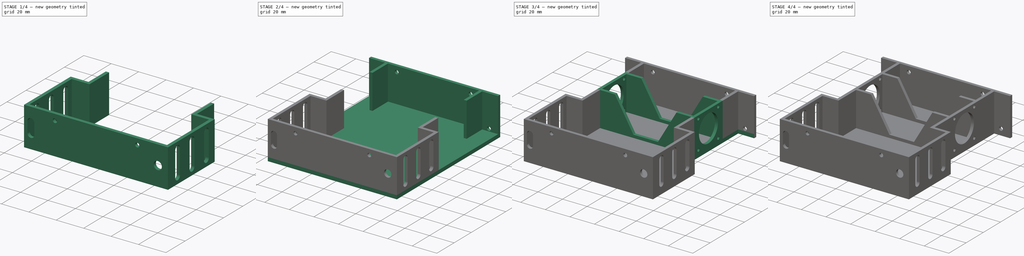
[diagram: build sequence overview — one tinted view per stage of 4, left to right]
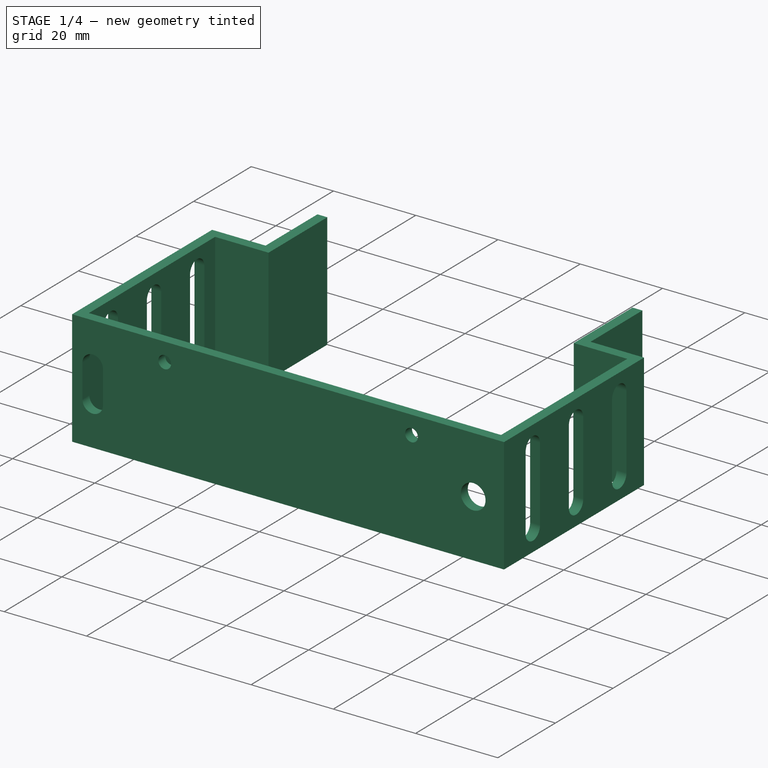
[diagram: stage 1 of 4 — iso view after this stage's code; geometry added in this stage tinted green]
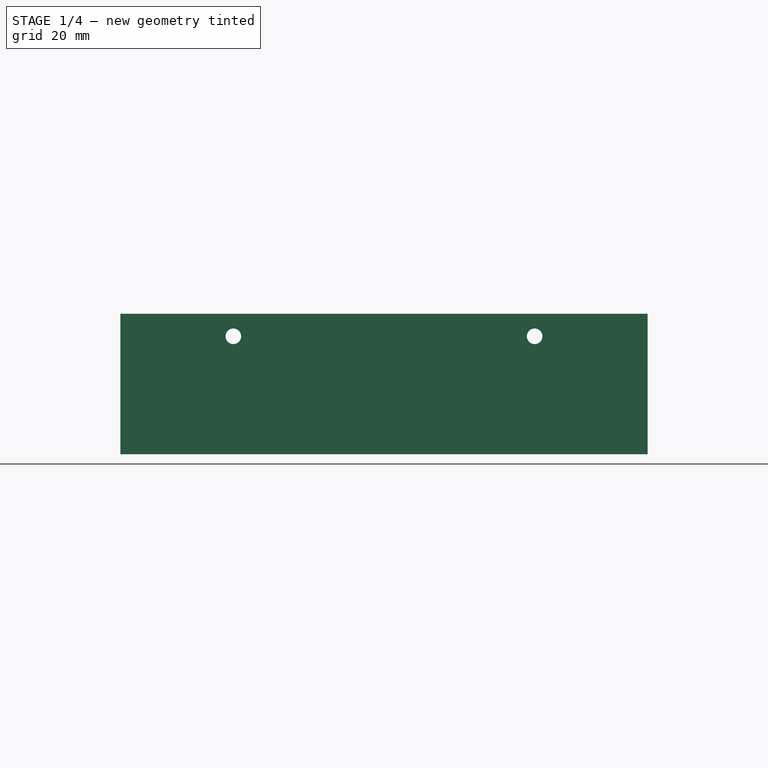
[diagram: stage 1 of 4 — front view after this stage's code; geometry added in this stage tinted green]
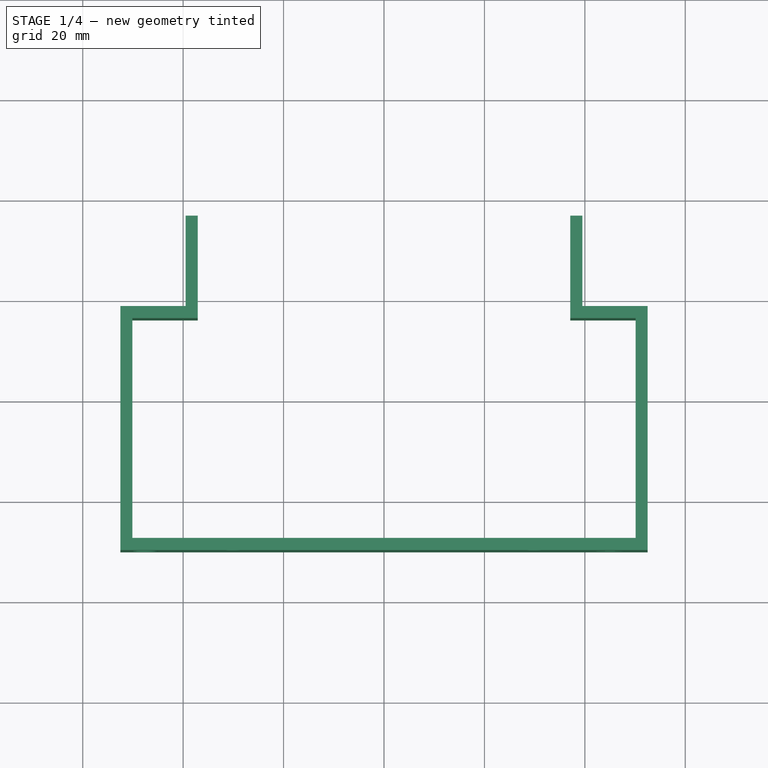
[diagram: stage 1 of 4 — top view after this stage's code; geometry added in this stage tinted green]
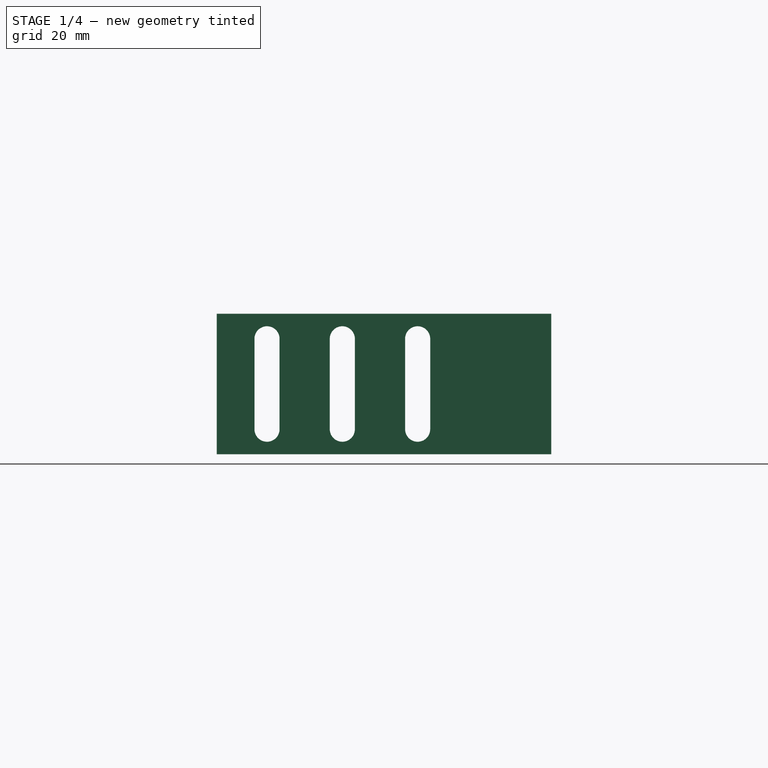
[diagram: stage 1 of 4 — right view after this stage's code; geometry added in this stage tinted green]
FCSTD DOCUMENT  (FreeCAD 0.16R6706 (Git))
Label: ChassisBase
License: All rights reserved
LicenseURL: http://de.wikipedia.org/wiki/Alle_Rechte_vorbehalten
objects: Sketcher::SketchObject×13, PartDesign::Pocket×8, PartDesign::Pad×5
note: 39 computed .brp shape members not serialized (recipe doc carries the construction recipe); baked Part::Feature solids carry a one-line shape summary decoded from their .brp

FEATURE [Sketcher::SketchObject] Sketch013  label="Streben2"
  Placement = pos=(0,0,3) rot=(0,0,1;0rad)
  sketch-geometry (16):
    g0: LineSegment StartX=-52.5 StartY=-70 StartZ=0 EndX=52.5 EndY=-70 EndZ=0
    g1: LineSegment StartX=52.5 StartY=-70 StartZ=0 EndX=52.5 EndY=-21.4 EndZ=0
    g2: LineSegment StartX=52.5 StartY=-21.4 StartZ=0 EndX=39.5 EndY=-21.4 EndZ=0
    g3: LineSegment StartX=39.5 StartY=-21.4 StartZ=0 EndX=39.5 EndY=-3.4 EndZ=0
    g4: LineSegment StartX=39.5 StartY=-3.4 StartZ=0 EndX=37.1 EndY=-3.4 EndZ=0
    g5: LineSegment StartX=37.1 StartY=-3.4 StartZ=0 EndX=37.1 EndY=-23.8 EndZ=0
    g6: LineSegment StartX=37.1 StartY=-23.8 StartZ=0 EndX=50.1 EndY=-23.8 EndZ=0
    g7: LineSegment StartX=50.1 StartY=-23.8 StartZ=0 EndX=50.1 EndY=-67.6 EndZ=0
    g8: LineSegment StartX=50.1 StartY=-67.6 StartZ=0 EndX=-50.1 EndY=-67.6 EndZ=0
    g9: LineSegment StartX=-50.1 StartY=-67.6 StartZ=0 EndX=-50.1 EndY=-23.8 EndZ=0
    g10: LineSegment StartX=-50.1 StartY=-23.8 StartZ=0 EndX=-37.1 EndY=-23.8 EndZ=0
    g11: LineSegment StartX=-37.1 StartY=-23.8 StartZ=0 EndX=-37.1 EndY=-3.4 EndZ=0
    g12: LineSegment StartX=-37.1 StartY=-3.4 StartZ=0 EndX=-39.5 EndY=-3.4 EndZ=0
    g13: LineSegment StartX=-39.5 StartY=-3.4 StartZ=0 EndX=-39.5 EndY=-21.4 EndZ=0
    g14: LineSegment StartX=-39.5 StartY=-21.4 StartZ=0 EndX=-52.5 EndY=-21.4 EndZ=0
    g15: LineSegment StartX=-52.5 StartY=-21.4 StartZ=0 EndX=-52.5 EndY=-70 EndZ=0
  constraints (48):
    c: Horizontal(g0)
    c: Coincident(g0,g1)
    c: Vertical(g1)
    c: Coincident(g1,g2)
    c: Horizontal(g2)
    c: Coincident(g2,g3)
    c: Vertical(g3)
    c: Coincident(g3,g4)
    c: Horizontal(g4)
    c: Coincident(g4,g5)
    c: Vertical(g5)
    c: Coincident(g5,g6)
    c: Horizontal(g6)
    c: Coincident(g6,g7)
    c: Vertical(g7)
    c: Coincident(g7,g8)
    c: Horizontal(g8)
    c: Coincident(g8,g9)
    c: Vertical(g9)
    c: Coincident(g9,g10)
    c: Horizontal(g10)
    c: Coincident(g10,g11)
    c: Vertical(g11)
    c: Coincident(g11,g12)
    c: Coincident(g12,g13)
    c: Vertical(g13)
    c: Coincident(g13,g14)
    c: Horizontal(g14)
    c: Coincident(g14,g15)
    c: Coincident(g15,g0)
    c: Vertical(g15)
    c: Symmetric(g0,g0,g-2)
    c: DistanceX(g0,g0) = 105
    c: DistanceY(g0,g-1) = 70
    c: Symmetric(g8,g7,g-2)
    c: DistanceX(g8,g8) = 100.2
    c: DistanceY(g8,g-1) = 67.6
    c: DistanceY(g14,g-1) = 21.4
    c: DistanceY(g9,g-1) = 23.8
    c: DistanceX(g13,g-1) = 39.5
    c: DistanceX(g10,g-1) = 37.1
    c: Horizontal(g12)
    c: Equal(g15,g1)
    c: Equal(g9,g7)
    c: Equal(g10,g6)
    c: Equal(g14,g2)
    c: Equal(g13,g3)
    c: DistanceY(g12,g-1) = 3.4
FEATURE [PartDesign::Pad] Pad004
  Length = 28
  Length2 = 100
  Placement = pos=(0,0,3) rot=(0,0,1;0rad)
  Sketch = -> Sketch013
  Type = 0
FEATURE [Sketcher::SketchObject] Sketch017
  Placement = pos=(52.5,0,3) rot=(0.57735,0.57735,0.57735;2.0944rad)
  Support = -> Pad004 [Face2]
  sketch-geometry (12):
    g0: ArcOfCircle CenterX=-30 CenterY=5 CenterZ=0 NormalX=0 NormalY=0 NormalZ=1 Radius=2.5 StartAngle=3.14159 EndAngle=6.28319
    g1: ArcOfCircle CenterX=-30 CenterY=23 CenterZ=0 NormalX=0 NormalY=0 NormalZ=1 Radius=2.5 StartAngle=0 EndAngle=3.14159
    g2: LineSegment StartX=-27.5 StartY=5 StartZ=0 EndX=-27.5 EndY=23 EndZ=0
    g3: LineSegment StartX=-32.5 StartY=5 StartZ=0 EndX=-32.5 EndY=23 EndZ=0
    g4: ArcOfCircle CenterX=-45 CenterY=5 CenterZ=0 NormalX=0 NormalY=0 NormalZ=1 Radius=2.5 StartAngle=3.14159 EndAngle=6.28319
    g5: ArcOfCircle CenterX=-45 CenterY=23 CenterZ=0 NormalX=0 NormalY=0 NormalZ=1 Radius=2.5 StartAngle=0 EndAngle=3.14159
    g6: LineSegment StartX=-42.5 StartY=5 StartZ=0 EndX=-42.5 EndY=23 EndZ=0
    g7: LineSegment StartX=-47.5 StartY=5 StartZ=0 EndX=-47.5 EndY=23 EndZ=0
    g8: ArcOfCircle CenterX=-60 CenterY=5 CenterZ=0 NormalX=0 NormalY=0 NormalZ=1 Radius=2.5 StartAngle=3.14159 EndAngle=6.28319
    g9: ArcOfCircle CenterX=-60 CenterY=23 CenterZ=0 NormalX=0 NormalY=0 NormalZ=1 Radius=2.5 StartAngle=0 EndAngle=3.14159
    g10: LineSegment StartX=-57.5 StartY=5 StartZ=0 EndX=-57.5 EndY=23 EndZ=0
    g11: LineSegment StartX=-62.5 StartY=5 StartZ=0 EndX=-62.5 EndY=23 EndZ=0
  constraints (30):
    c: Tangent(g0,g3) = 1.5708
    c: Tangent(g0,g2) = -1.5708
    c: Tangent(g2,g1) = -1.5708
    c: Tangent(g3,g1) = 1.5708
    c: Vertical(g2)
    c: Equal(g0,g1)
    c: Radius(g1) = 2.5
    c: DistanceY(g-1,g0) = 5
    c: DistanceY(g-1,g1) = 23
    c: DistanceX(g0,g-1) = 30
    c: Tangent(g4,g7) = 1.5708
    c: Tangent(g4,g6) = -1.5708
    c: Tangent(g6,g5) = -1.5708
    c: Tangent(g7,g5) = 1.5708
    c: Vertical(g6)
    c: Equal(g4,g5)
    c: Radius(g5) = 2.5
    c: DistanceX(g5,g-1) = 45
    c: DistanceY(g-1,g4) = 5
    c: DistanceY(g-1,g5) = 23
    c: Tangent(g8,g11) = 1.5708
    c: Tangent(g8,g10) = -1.5708
    c: Tangent(g10,g9) = -1.5708
    c: Tangent(g11,g9) = 1.5708
    c: Vertical(g10)
    c: Equal(g8,g9)
    c: Equal(g5,g9) = 2.5
    c: DistanceX(g8,g-1) = 60
    c: DistanceY(g-1,g8) = 5
    c: DistanceY(g-1,g9) = 23
FEATURE [PartDesign::Pocket] Pocket005
  Length = 5
  Placement = pos=(0,0,3) rot=(0,0,1;0rad)
  Sketch = -> Sketch017
  Type = 1
FEATURE [Sketcher::SketchObject] Sketch019  label="Heckloecher"
  Placement = pos=(0,-70,3) rot=(1,0,0;1.5708rad)
  Support = -> Pocket005 [Face1]
  sketch-geometry (7):
    g0: Circle CenterX=-30 CenterY=23.5 CenterZ=0 NormalX=0 NormalY=0 NormalZ=1 Radius=1.55
    g1: Circle CenterX=30 CenterY=23.5 CenterZ=0 NormalX=0 NormalY=0 NormalZ=1 Radius=1.55
    g2: Circle CenterX=45 CenterY=14 CenterZ=0 NormalX=0 NormalY=0 NormalZ=1 Radius=3
    g3: ArcOfCircle CenterX=-47.5 CenterY=18 CenterZ=0 NormalX=0 NormalY=0 NormalZ=1 Radius=2.5 StartAngle=0 EndAngle=3.14159
    g4: ArcOfCircle CenterX=-47.5 CenterY=10 CenterZ=0 NormalX=0 NormalY=0 NormalZ=1 Radius=2.5 StartAngle=3.14159 EndAngle=6.28319
    g5: LineSegment StartX=-50 StartY=18 StartZ=0 EndX=-50 EndY=10 EndZ=0
    g6: LineSegment StartX=-45 StartY=18 StartZ=0 EndX=-45 EndY=10 EndZ=0
  constraints (18):
    c: Radius(g0) = 1.55
    c: Radius(g1) = 1.55
    c: DistanceY(g-1,g0) = 23.5
    c: DistanceX(g0,g-1) = 30
    c: Symmetric(g0,g1,g-2)
    c: Radius(g2) = 3
    c: DistanceX(g-1,g2) = 45
    c: DistanceY(g-1,g2) = 14
    c: Tangent(g3,g6) = 1.5708
    c: Tangent(g3,g5) = -1.5708
    c: Tangent(g5,g4) = -1.5708
    c: Tangent(g6,g4) = 1.5708
    c: Vertical(g5)
    c: Equal(g3,g4)
    c: Radius(g4) = 2.5
    c: DistanceY(g5,g5) = 8
    c: DistanceX(g3,g-1) = 50
    c: DistanceY(g-1,g4) = 10
FEATURE [PartDesign::Pocket] Pocket007
  Length = 5
  Placement = pos=(0,0,3) rot=(0,0,1;0rad)
  Sketch = -> Sketch019
  Type = 0
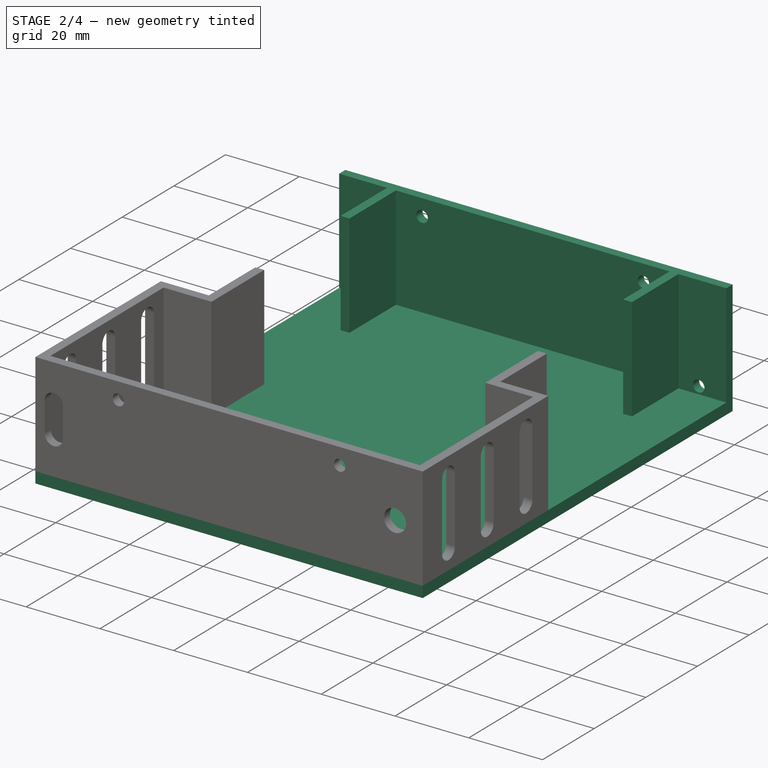
[diagram: stage 2 of 4 — iso view after this stage's code; geometry added in this stage tinted green]
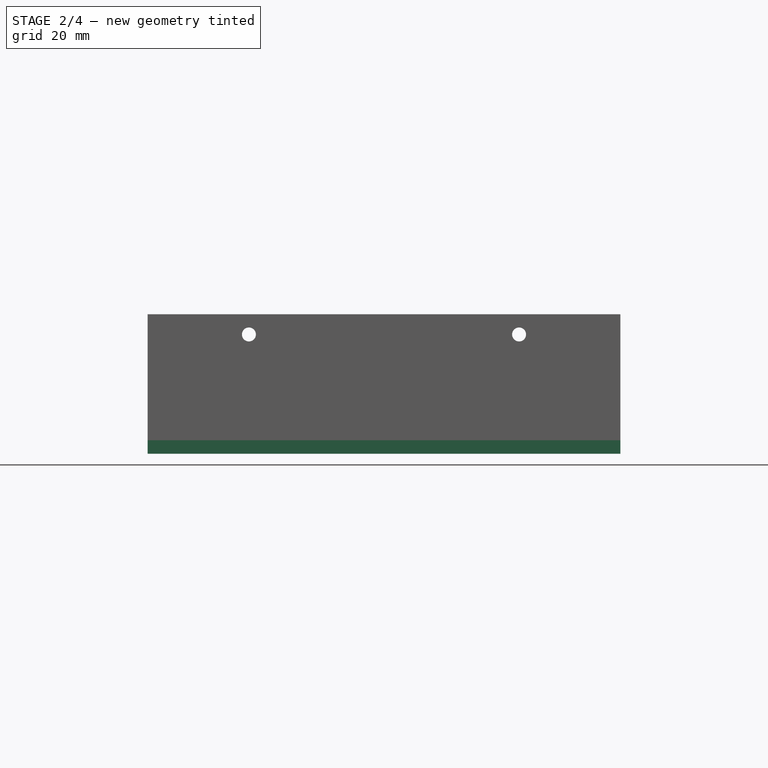
[diagram: stage 2 of 4 — front view after this stage's code; geometry added in this stage tinted green]
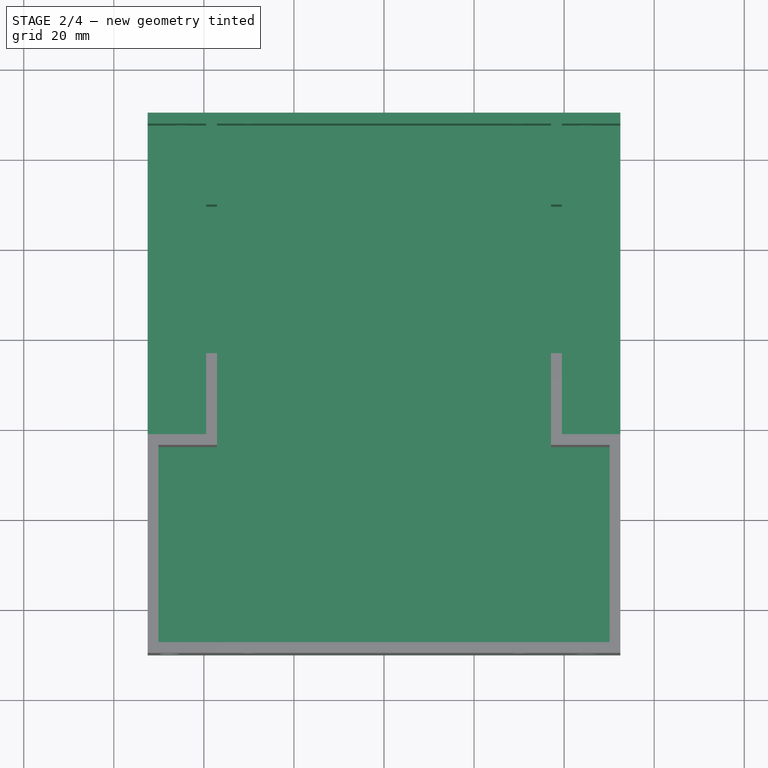
[diagram: stage 2 of 4 — top view after this stage's code; geometry added in this stage tinted green]
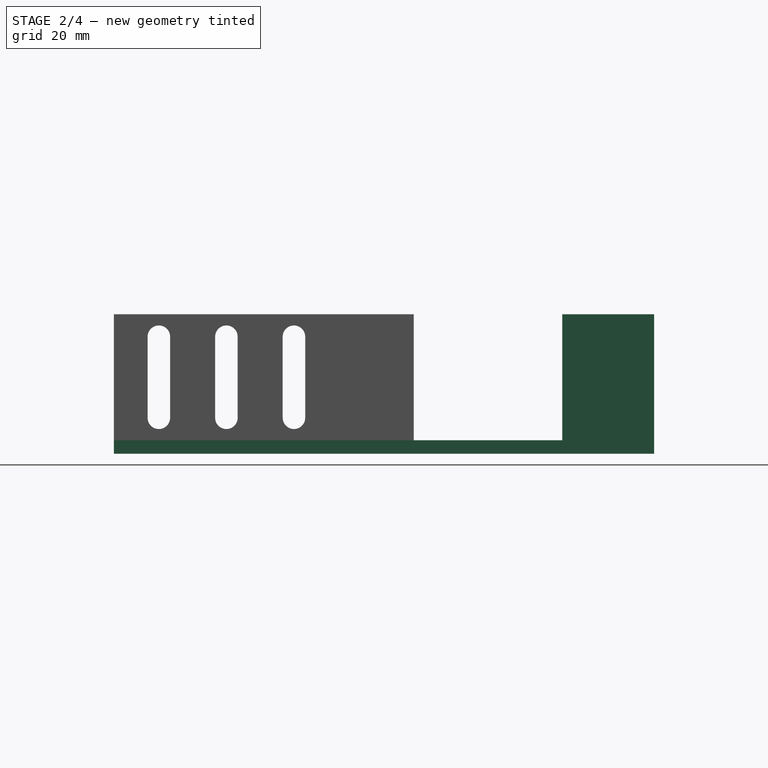
[diagram: stage 2 of 4 — right view after this stage's code; geometry added in this stage tinted green]
FEATURE [Sketcher::SketchObject] Sketch  label="Bodenplatte"
  sketch-geometry (4):
    g0: LineSegment StartX=-52.5 StartY=50 StartZ=0 EndX=52.5 EndY=50 EndZ=0
    g1: LineSegment StartX=52.5 StartY=50 StartZ=0 EndX=52.5 EndY=-70 EndZ=0
    g2: LineSegment StartX=52.5 StartY=-70 StartZ=0 EndX=-52.5 EndY=-70 EndZ=0
    g3: LineSegment StartX=-52.5 StartY=-70 StartZ=0 EndX=-52.5 EndY=50 EndZ=0
  constraints (12):
    c: Coincident(g0,g1)
    c: Coincident(g1,g2)
    c: Coincident(g2,g3)
    c: Coincident(g3,g0)
    c: Horizontal(g0)
    c: Horizontal(g2)
    c: Vertical(g1)
    c: Vertical(g3)
    c: Symmetric(g0,g0,g-2)
    c: DistanceX(g0,g0) = 105
    c: DistanceY(g-1,g0) = 50
    c: DistanceY(g2,g-1) = 70
FEATURE [PartDesign::Pad] Pad
  Length = 3
  Length2 = 100
  Sketch = -> Sketch
  Type = 0
FEATURE [PartDesign::Pad] Pad002
  Length = 28
  Length2 = 100
  Placement = pos=(0,0,3) rot=(0,0,1;0rad)
  Sketch = -> Sketch009
  Type = 0
FEATURE [Sketcher::SketchObject] Sketch018  label="Frontloecher"
  Placement = pos=(0,50,3) rot=(0,0.707107,0.707107;3.14159rad)
  Support = -> Pad002 [Face1]
  sketch-geometry (4):
    g0: Circle CenterX=-45 CenterY=2 CenterZ=0 NormalX=0 NormalY=0 NormalZ=1 Radius=1.55
    g1: Circle CenterX=45 CenterY=2 CenterZ=0 NormalX=0 NormalY=0 NormalZ=1 Radius=1.55
    g2: Circle CenterX=30 CenterY=23.5 CenterZ=0 NormalX=0 NormalY=0 NormalZ=1 Radius=1.55
    g3: Circle CenterX=-30 CenterY=23.5 CenterZ=0 NormalX=0 NormalY=0 NormalZ=1 Radius=1.55
  constraints (10):
    c: Symmetric(g0,g1,g-2)
    c: Radius(g0) = 1.55
    c: Radius(g1) = 1.55
    c: DistanceY(g-1,g0) = 2
    c: DistanceX(g0,g-1) = 45
    c: Radius(g2) = 1.55
    c: DistanceY(g-1,g2) = 23.5
    c: DistanceX(g-1,g2) = 30
    c: Radius(g3) = 1.55
    c: Symmetric(g2,g3,g-2)
FEATURE [PartDesign::Pocket] Pocket006
  Length = 5
  Placement = pos=(0,0,3) rot=(0,0,1;0rad)
  Sketch = -> Sketch018
  Type = 0
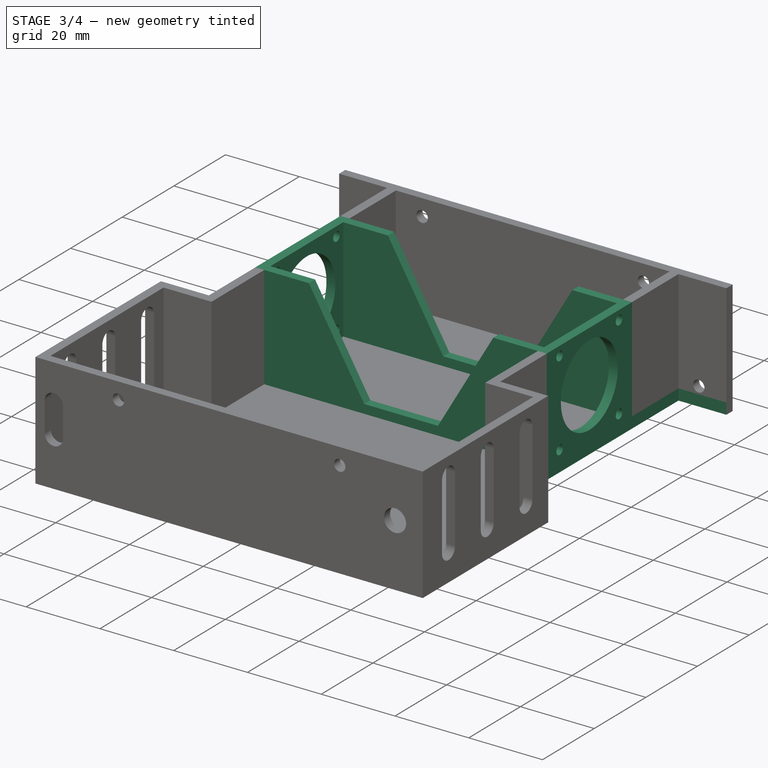
[diagram: stage 3 of 4 — iso view after this stage's code; geometry added in this stage tinted green]
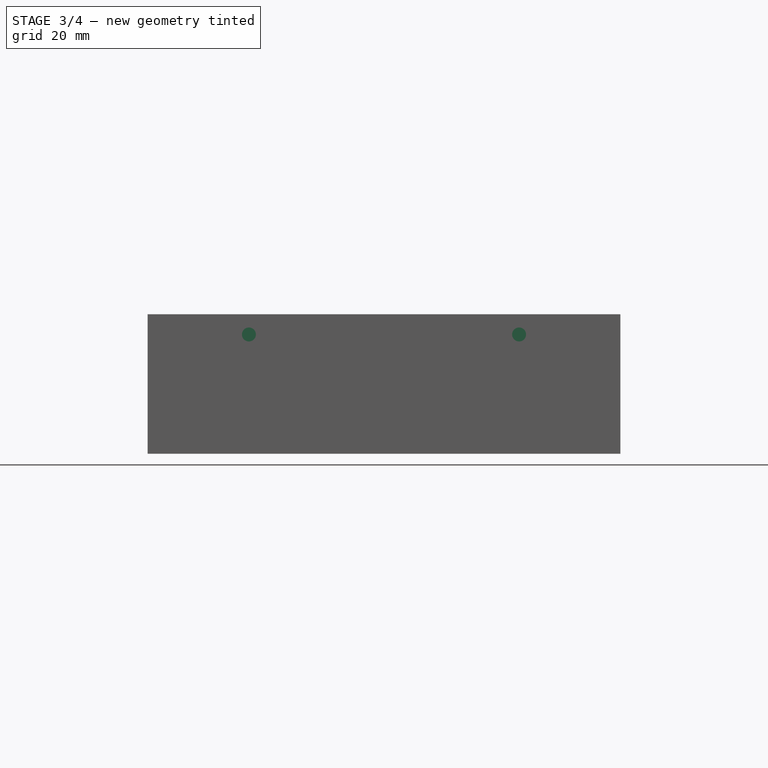
[diagram: stage 3 of 4 — front view after this stage's code; geometry added in this stage tinted green]
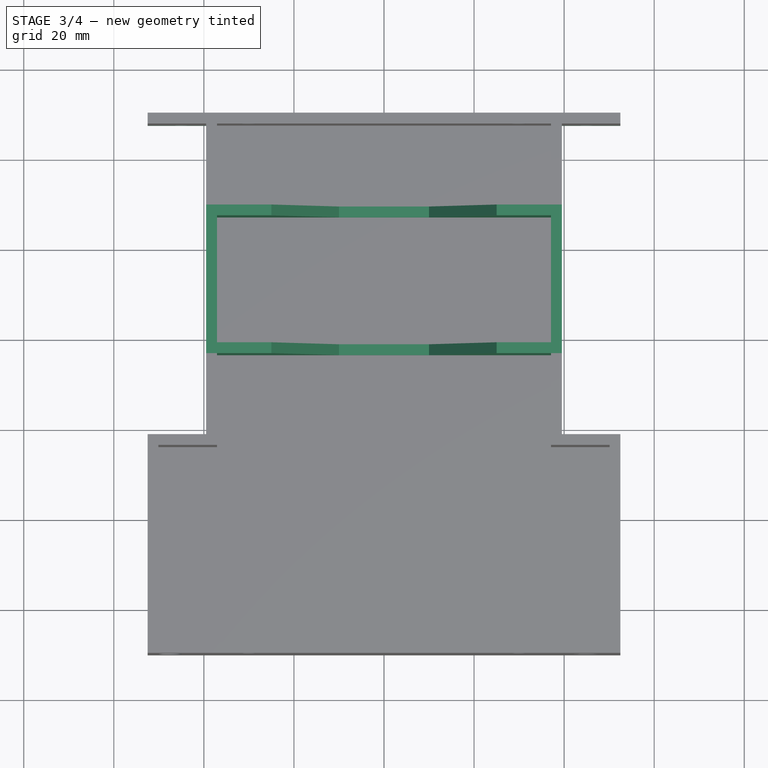
[diagram: stage 3 of 4 — top view after this stage's code; geometry added in this stage tinted green]
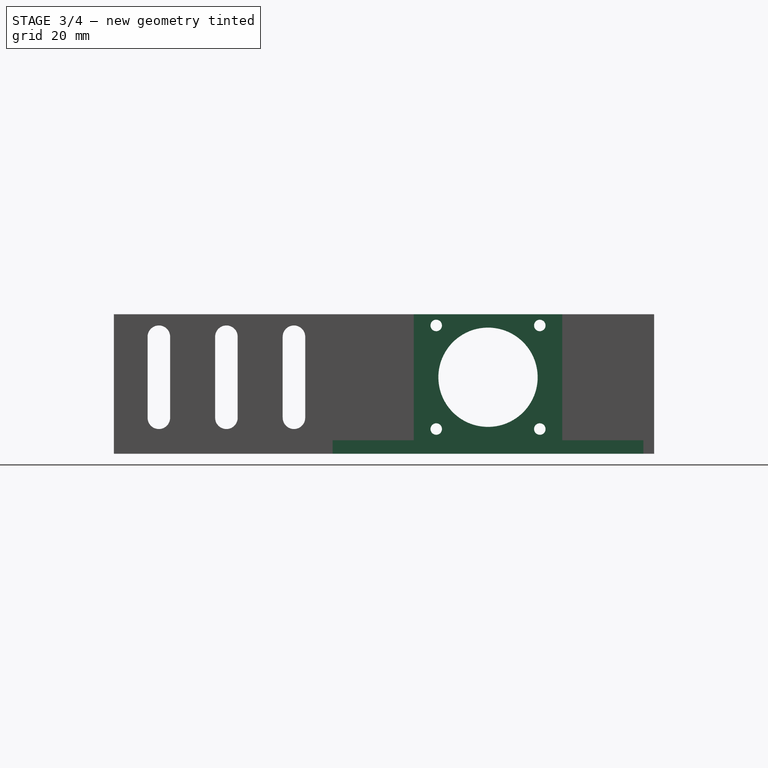
[diagram: stage 3 of 4 — right view after this stage's code; geometry added in this stage tinted green]
FEATURE [Sketcher::SketchObject] Sketch001  label="Radkasten"
  Placement = pos=(0,0,3) rot=(0,0,1;0rad)
  Support = -> Pad [Face6]
  sketch-geometry (8):
    g0: LineSegment StartX=-52.5 StartY=47.6 StartZ=0 EndX=-39.5 EndY=47.6 EndZ=0
    g1: LineSegment StartX=-39.5 StartY=47.6 StartZ=0 EndX=-39.5 EndY=-21.4 EndZ=0
    g2: LineSegment StartX=-39.5 StartY=-21.4 StartZ=0 EndX=-52.5 EndY=-21.4 EndZ=0
    g3: LineSegment StartX=-52.5 StartY=-21.4 StartZ=0 EndX=-52.5 EndY=47.6 EndZ=0
    g4: LineSegment StartX=39.5 StartY=47.6 StartZ=0 EndX=52.5 EndY=47.6 EndZ=0
    g5: LineSegment StartX=52.5 StartY=47.6 StartZ=0 EndX=52.5 EndY=-21.4 EndZ=0
    g6: LineSegment StartX=52.5 StartY=-21.4 StartZ=0 EndX=39.5 EndY=-21.4 EndZ=0
    g7: LineSegment StartX=39.5 StartY=-21.4 StartZ=0 EndX=39.5 EndY=47.6 EndZ=0
  constraints (23):
    c: Coincident(g0,g1)
    c: Coincident(g1,g2)
    c: Coincident(g2,g3)
    c: Coincident(g3,g0)
    c: Horizontal(g0)
    c: Horizontal(g2)
    c: Vertical(g1)
    c: Vertical(g3)
    c: Coincident(g4,g5)
    c: Coincident(g5,g6)
    c: Coincident(g6,g7)
    c: Coincident(g7,g4)
    c: Horizontal(g4)
    c: Horizontal(g6)
    c: Vertical(g5)
    c: Vertical(g7)
    c: DistanceY(g3,g3) = 69
    c: DistanceX(g0,g0) = 13
    c: DistanceY(g-1,g0) = 47.6
    c: DistanceX(g2,g-1) = 52.5
    c: Equal(g1,g7)
    c: Equal(g2,g6)
    c: Symmetric(g0,g4,g-2)
FEATURE [PartDesign::Pocket] Pocket
  Length = 5
  Sketch = -> Sketch001
  Type = 0
FEATURE [Sketcher::SketchObject] Sketch002  label="Motorrahmen"
  Placement = pos=(0,0,3) rot=(0,0,1;0rad)
  Support = -> Pocket [Face5]
  sketch-geometry (16):
    g0: LineSegment StartX=-39.5 StartY=29.6 StartZ=0 EndX=-37.1 EndY=29.6 EndZ=0
    g1: LineSegment StartX=-37.1 StartY=29.6 StartZ=0 EndX=-37.1 EndY=-3.4 EndZ=0
    g2: LineSegment StartX=-37.1 StartY=-3.4 StartZ=0 EndX=-39.5 EndY=-3.4 EndZ=0
    g3: LineSegment StartX=-39.5 StartY=-3.4 StartZ=0 EndX=-39.5 EndY=29.6 EndZ=0
    g4: LineSegment StartX=37.1 StartY=29.6 StartZ=0 EndX=39.5 EndY=29.6 EndZ=0
    g5: LineSegment StartX=39.5 StartY=29.6 StartZ=0 EndX=39.5 EndY=-3.4 EndZ=0
    g6: LineSegment StartX=39.5 StartY=-3.4 StartZ=0 EndX=37.1 EndY=-3.4 EndZ=0
    g7: LineSegment StartX=37.1 StartY=-3.4 StartZ=0 EndX=37.1 EndY=29.6 EndZ=0
    g8: LineSegment StartX=-37.1 StartY=-3.4 StartZ=0 EndX=37.1 EndY=-3.4 EndZ=0
    g9: LineSegment StartX=37.1 StartY=-3.4 StartZ=0 EndX=37.1 EndY=-1 EndZ=0
    g10: LineSegment StartX=37.1 StartY=-1 StartZ=0 EndX=-37.1 EndY=-1 EndZ=0
    g11: LineSegment StartX=-37.1 StartY=-1 StartZ=0 EndX=-37.1 EndY=-3.4 EndZ=0
    g12: LineSegment StartX=-37.1 StartY=27.2 StartZ=0 EndX=37.1 EndY=27.2 EndZ=0
    g13: LineSegment StartX=37.1 StartY=27.2 StartZ=0 EndX=37.1 EndY=29.6 EndZ=0
    g14: LineSegment StartX=37.1 StartY=29.6 StartZ=0 EndX=-37.1 EndY=29.6 EndZ=0
    g15: LineSegment StartX=-37.1 StartY=29.6 StartZ=0 EndX=-37.1 EndY=27.2 EndZ=0
  constraints (45):
    c: Coincident(g0,g1)
    c: Coincident(g1,g2)
    c: Coincident(g2,g3)
    c: Coincident(g3,g0)
    c: Horizontal(g0)
    c: Horizontal(g2)
    c: Vertical(g1)
    c: Vertical(g3)
    c: DistanceX(g0,g0) = 2.4
    c: DistanceY(g3,g3) = 33
    c: DistanceX(g2,g-1) = 39.5
    c: DistanceY(g-1,g0) = 29.6
    c: Coincident(g4,g5)
    c: Coincident(g5,g6)
    c: Coincident(g6,g7)
    c: Coincident(g7,g4)
    c: Horizontal(g4)
    c: Horizontal(g6)
    c: Vertical(g5)
    c: Vertical(g7)
    c: Equal(g1,g7)
    c: Equal(g0,g4)
    c: Symmetric(g0,g4,g-2)
    c: Coincident(g8,g9)
    c: Coincident(g9,g10)
    c: Coincident(g10,g11)
    c: Coincident(g11,g8)
    c: Horizontal(g8)
    c: Horizontal(g10)
    c: Vertical(g9)
    c: Vertical(g11)
    c: Coincident(g12,g13)
    c: Coincident(g13,g14)
    c: Coincident(g14,g15)
    c: Coincident(g15,g12)
    c: Horizontal(g12)
    c: Horizontal(g14)
    c: Vertical(g13)
    c: Vertical(g15)
    c: DistanceY(g11,g11) = 2.4
    c: DistanceY(g15,g15) = 2.4
    c: Coincident(g1,g8)
    c: Coincident(g0,g14)
    c: Coincident(g6,g8)
    c: Coincident(g4,g13)
FEATURE [Sketcher::SketchObject] Sketch009  label="Streben"
  Placement = pos=(0,0,3) rot=(0,0,1;0rad)
  sketch-geometry (12):
    g0: LineSegment StartX=-52.5 StartY=50 StartZ=0 EndX=52.5 EndY=50 EndZ=0
    g1: LineSegment StartX=52.5 StartY=50 StartZ=0 EndX=52.5 EndY=47.6 EndZ=0
    g2: LineSegment StartX=52.5 StartY=47.6 StartZ=0 EndX=39.5 EndY=47.6 EndZ=0
    g3: LineSegment StartX=-52.5 StartY=47.6 StartZ=0 EndX=-52.5 EndY=50 EndZ=0
    g4: LineSegment StartX=-37.1 StartY=47.6 StartZ=0 EndX=-37.1 EndY=29.6 EndZ=0
    g5: LineSegment StartX=-37.1 StartY=29.6 StartZ=0 EndX=-39.5 EndY=29.6 EndZ=0
    g6: LineSegment StartX=-39.5 StartY=29.6 StartZ=0 EndX=-39.5 EndY=47.6 EndZ=0
    g7: LineSegment StartX=39.5 StartY=47.6 StartZ=0 EndX=39.5 EndY=29.6 EndZ=0
    g8: LineSegment StartX=39.5 StartY=29.6 StartZ=0 EndX=37.1 EndY=29.6 EndZ=0
    g9: LineSegment StartX=37.1 StartY=29.6 StartZ=0 EndX=37.1 EndY=47.6 EndZ=0
    g10: LineSegment StartX=-39.5 StartY=47.6 StartZ=0 EndX=-52.5 EndY=47.6 EndZ=0
    g11: LineSegment StartX=37.1 StartY=47.6 StartZ=0 EndX=-37.1 EndY=47.6 EndZ=0
  constraints (34):
    c: Coincident(g0,g1)
    c: Coincident(g1,g2)
    c: Coincident(g10,g3)
    c: Coincident(g3,g0)
    c: Horizontal(g0)
    c: Horizontal(g2)
    c: Vertical(g1)
    c: Vertical(g3)
    c: DistanceY(g1,g1) = 2.4
    c: DistanceX(g0,g0) = 105
    c: Symmetric(g0,g0,g-2)
    c: DistanceY(g-1,g0) = 50
    c: Coincident(g4,g5)
    c: Coincident(g5,g6)
    c: Horizontal(g5)
    c: Vertical(g4)
    c: Vertical(g6)
    c: Coincident(g7,g8)
    c: Coincident(g8,g9)
    c: Horizontal(g8)
    c: Vertical(g7)
    c: Vertical(g9)
    c: DistanceY(g-1,g5) = 29.6
    c: Equal(g4,g9)
    c: Coincident(g11,g4)
    c: Coincident(g10,g6)
    c: Tangent(g2,g10)
    c: DistanceX(g5,g5) = 2.4
    c: DistanceX(g10,g10) = 13
    c: Coincident(g2,g7)
    c: Coincident(g11,g9)
    c: Tangent(g2,g11)
    c: DistanceX(g8,g8) = 2.4
    c: DistanceX(g11,g11) = 74.2
FEATURE [PartDesign::Pad] Pad001
  Length = 28
  Length2 = 100
  Sketch = -> Sketch002
  Type = 0
FEATURE [Sketcher::SketchObject] Sketch003  label="Motorhalter"
  Placement = pos=(-39.5,0,0) rot=(0.57735,-0.57735,-0.57735;2.0944rad)
  Support = -> Pad001 [Face20]
  sketch-geometry (5):
    g0: Circle CenterX=-13.1 CenterY=17 CenterZ=0 NormalX=0 NormalY=0 NormalZ=1 Radius=11.025
    g1: Circle CenterX=-24.6 CenterY=28.5 CenterZ=0 NormalX=0 NormalY=0 NormalZ=1 Radius=1.275
    g2: Circle CenterX=-1.6 CenterY=28.5 CenterZ=0 NormalX=0 NormalY=0 NormalZ=1 Radius=1.275
    g3: Circle CenterX=-24.6 CenterY=5.5 CenterZ=0 NormalX=0 NormalY=0 NormalZ=1 Radius=1.275
    g4: Circle CenterX=-1.6 CenterY=5.5 CenterZ=0 NormalX=0 NormalY=0 NormalZ=1 Radius=1.275
  constraints (15):
    c: Radius(g0) = 11.025
    c: DistanceY(g-1,g0) = 17
    c: Radius(g1) = 1.275
    c: Radius(g2) = 1.275
    c: Radius(g3) = 1.275
    c: Radius(g4) = 1.275
    c: DistanceY(g-1,g3) = 5.5
    c: DistanceY(g-1,g4) = 5.5
    c: DistanceY(g-1,g1) = 28.5
    c: DistanceY(g-1,g2) = 28.5
    c: DistanceX(g1,g2) = 23
    c: DistanceX(g3,g4) = 23
    c: DistanceX(g0,g-1) = 13.1
    c: DistanceX(g2,g-1) = 1.6
    c: DistanceX(g4,g-1) = 1.6
FEATURE [PartDesign::Pocket] Pocket001
  Length = 5
  Sketch = -> Sketch003
  Type = 1
FEATURE [Sketcher::SketchObject] Sketch004  label="Motorlueftung"
  Placement = pos=(0,29.6,0) rot=(0,0.707107,0.707107;3.14159rad)
  Support = -> Pocket001 [Face16]
  sketch-geometry (4):
    g0: LineSegment StartX=-25 StartY=31 StartZ=0 EndX=-10 EndY=5.4 EndZ=0
    g1: LineSegment StartX=-10 StartY=5.4 StartZ=0 EndX=10 EndY=5.4 EndZ=0
    g2: LineSegment StartX=10 StartY=5.4 StartZ=0 EndX=25 EndY=31 EndZ=0
    g3: LineSegment StartX=25 StartY=31 StartZ=0 EndX=-25 EndY=31 EndZ=0
  constraints (12):
    c: Coincident(g0,g1)
    c: Horizontal(g1)
    c: Coincident(g1,g2)
    c: Coincident(g2,g3)
    c: Coincident(g3,g0)
    c: Horizontal(g3)
    c: Symmetric(g0,g2,g-2)
    c: Symmetric(g0,g1,g-2)
    c: DistanceY(g-1,g0) = 5.4
    c: DistanceX(g3,g3) = 50
    c: DistanceY(g-1,g0) = 31
    c: DistanceX(g1,g1) = 20
FEATURE [PartDesign::Pocket] Pocket002
  Length = 33
  Sketch = -> Sketch004
  Type = 0
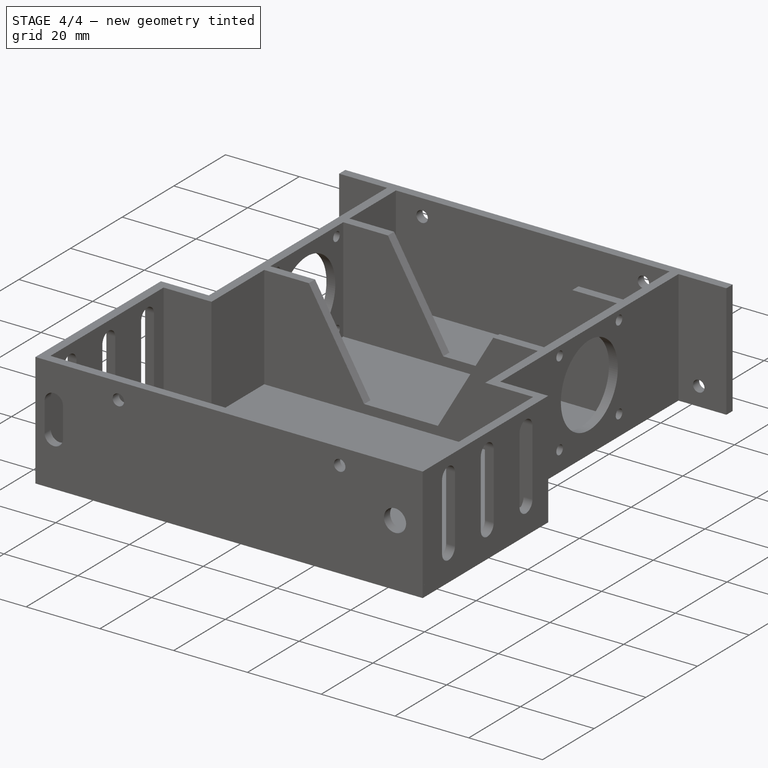
[diagram: stage 4 of 4 — iso view after this stage's code; geometry added in this stage tinted green]
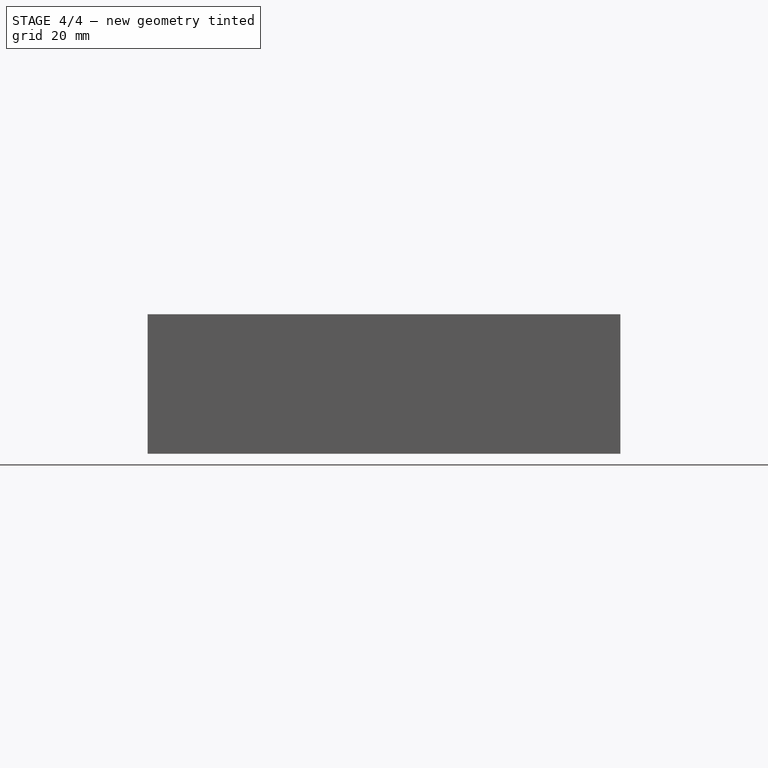
[diagram: stage 4 of 4 — front view after this stage's code; geometry added in this stage tinted green]
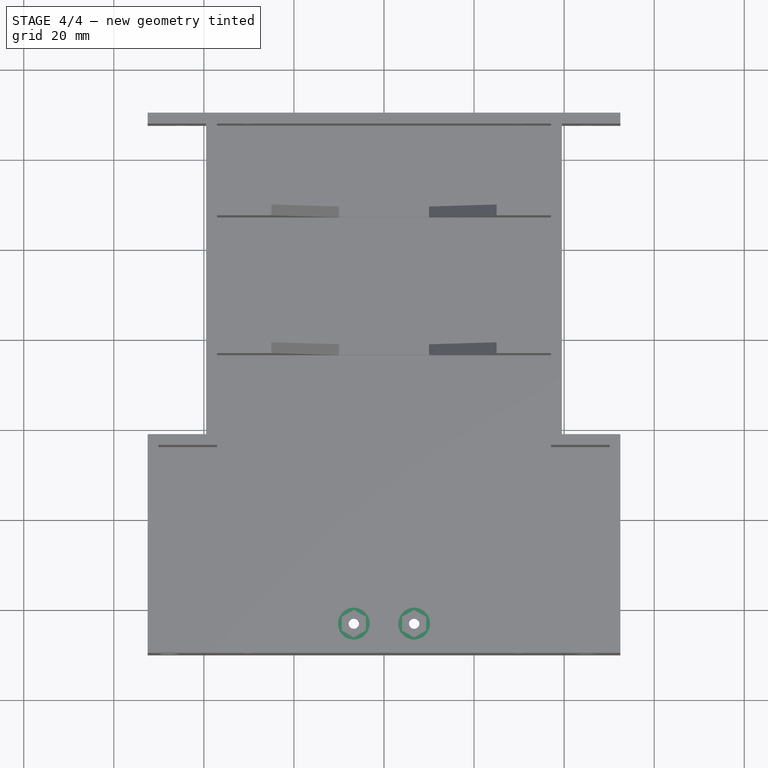
[diagram: stage 4 of 4 — top view after this stage's code; geometry added in this stage tinted green]
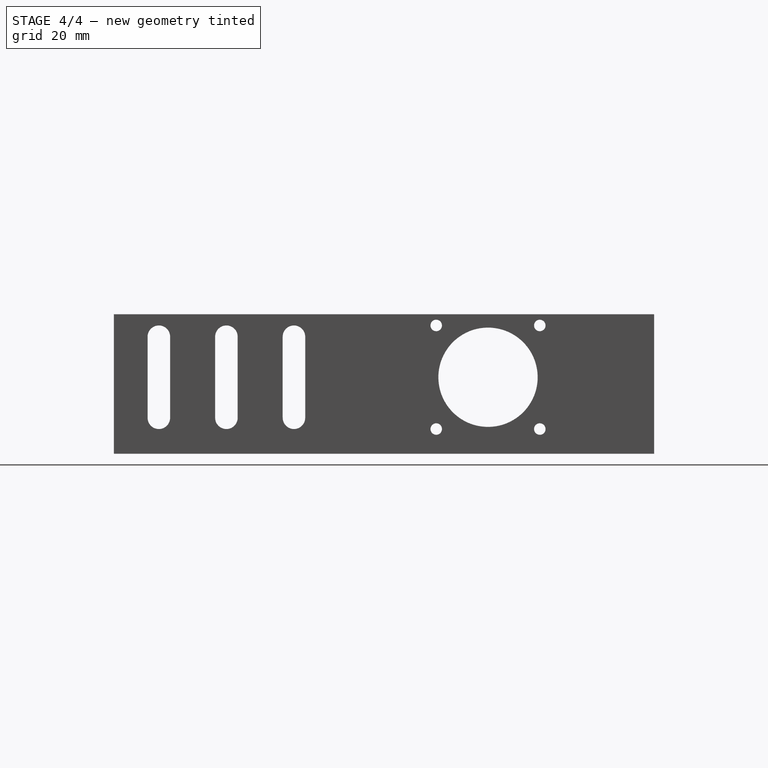
[diagram: stage 4 of 4 — right view after this stage's code; geometry added in this stage tinted green]
FEATURE [Sketcher::SketchObject] Sketch014  label="NutPads"
  Placement = pos=(0,0,3) rot=(0,0,1;0rad)
  Support = -> Pocket002 [Face18]
  sketch-geometry (2):
    g0: Circle CenterX=-6.7 CenterY=-63 CenterZ=0 NormalX=0 NormalY=0 NormalZ=1 Radius=3.5
    g1: Circle CenterX=6.7 CenterY=-63 CenterZ=0 NormalX=0 NormalY=0 NormalZ=1 Radius=3.5
  constraints (5):
    c: Symmetric(g0,g1,g-2)
    c: DistanceX(g0,g1) = 13.4
    c: Radius(g1) = 3.5
    c: Radius(g0) = 3.5
    c: DistanceY(g0,g-1) = 63
FEATURE [PartDesign::Pad] Pad005
  Length = 2
  Length2 = 100
  Sketch = -> Sketch014
  Type = 0
FEATURE [Sketcher::SketchObject] Sketch015  label="NutHexHoles"
  Placement = pos=(0,0,5) rot=(0,0,1;0rad)
  Support = -> Pad005 [Face49]
  sketch-geometry (14):
    g0: LineSegment StartX=-6.7 StartY=-59.9 StartZ=0 EndX=-9.38468 EndY=-61.45 EndZ=0
    g1: LineSegment StartX=-9.38468 StartY=-61.45 StartZ=0 EndX=-9.38468 EndY=-64.55 EndZ=0
    g2: LineSegment StartX=-9.38468 StartY=-64.55 StartZ=0 EndX=-6.7 EndY=-66.1 EndZ=0
    g3: LineSegment StartX=-6.7 StartY=-66.1 StartZ=0 EndX=-4.01532 EndY=-64.55 EndZ=0
    g4: LineSegment StartX=-4.01532 StartY=-64.55 StartZ=0 EndX=-4.01532 EndY=-61.45 EndZ=0
    g5: LineSegment StartX=-4.01532 StartY=-61.45 StartZ=0 EndX=-6.7 EndY=-59.9 EndZ=0
    g6: Circle [constr] CenterX=-6.7 CenterY=-63 CenterZ=0 NormalX=0 NormalY=0 NormalZ=1 Radius=3.1
    g7: LineSegment StartX=9.38468 StartY=-64.55 StartZ=0 EndX=9.38468 EndY=-61.45 EndZ=0
    g8: LineSegment StartX=9.38468 StartY=-61.45 StartZ=0 EndX=6.7 EndY=-59.9 EndZ=0
    g9: LineSegment StartX=6.7 StartY=-59.9 StartZ=0 EndX=4.01532 EndY=-61.45 EndZ=0
    g10: LineSegment StartX=4.01532 StartY=-61.45 StartZ=0 EndX=4.01532 EndY=-64.55 EndZ=0
    g11: LineSegment StartX=4.01532 StartY=-64.55 StartZ=0 EndX=6.7 EndY=-66.1 EndZ=0
    g12: LineSegment StartX=6.7 StartY=-66.1 StartZ=0 EndX=9.38468 EndY=-64.55 EndZ=0
    g13: Circle [constr] CenterX=6.7 CenterY=-63 CenterZ=0 NormalX=0 NormalY=0 NormalZ=1 Radius=3.1
  constraints (33):
    c: Coincident(g0,g1)
    c: Coincident(g1,g2)
    c: Coincident(g2,g3)
    c: Coincident(g3,g4)
    c: Coincident(g4,g5)
    c: Coincident(g5,g0)
    c: Equal(g0, g1-g5) x5
    c: PointOnObject(g0,g6)
    c: PointOnObject(g1,g6)
    c: PointOnObject(g2,g6)
    c: PointOnObject(g3,g6)
    c: PointOnObject(g4,g6)
    c: PointOnObject(g5,g6)
    c: Coincident(g7,g8)
    c: Coincident(g8,g9)
    c: Coincident(g9,g10)
    c: Coincident(g10,g11)
    c: Coincident(g11,g12)
    c: Coincident(g12,g7)
    c: Equal(g7, g8-g12) x5
    c: PointOnObject(g7,g13)
    c: PointOnObject(g8,g13)
    c: PointOnObject(g9,g13)
    c: PointOnObject(g10,g13)
    c: PointOnObject(g11,g13)
    c: PointOnObject(g12,g13)
    c: Symmetric(g6,g13,g-2)
    c: DistanceX(g6,g13) = 13.4
    c: Parallel(g4,g-2)
    c: Parallel(g10,g-2)
    c: DistanceY(g6,g-1) = 63
    c: DistanceY(g1,g1) = 3.1
    c: Equal(g1,g10)
FEATURE [PartDesign::Pocket] Pocket003
  Length = 2
  Sketch = -> Sketch015
  Type = 0
FEATURE [Sketcher::SketchObject] Sketch016  label="CasterHoles"
  Placement = pos=(0,0,0) rot=(1,0,0;3.14159rad)
  Support = -> Pocket003 [Face4]
  sketch-geometry (2):
    g0: Circle CenterX=-6.7 CenterY=63 CenterZ=0 NormalX=0 NormalY=0 NormalZ=1 Radius=1.15
    g1: Circle CenterX=6.7 CenterY=63 CenterZ=0 NormalX=0 NormalY=0 NormalZ=1 Radius=1.15
  constraints (5):
    c: Symmetric(g0,g1,g-2)
    c: Radius(g1) = 1.15
    c: Radius(g0) = 1.15
    c: DistanceX(g0,g1) = 13.4
    c: DistanceY(g-1,g0) = 63
FEATURE [PartDesign::Pocket] Pocket004
  Length = 5
  Sketch = -> Sketch016
  Type = 0
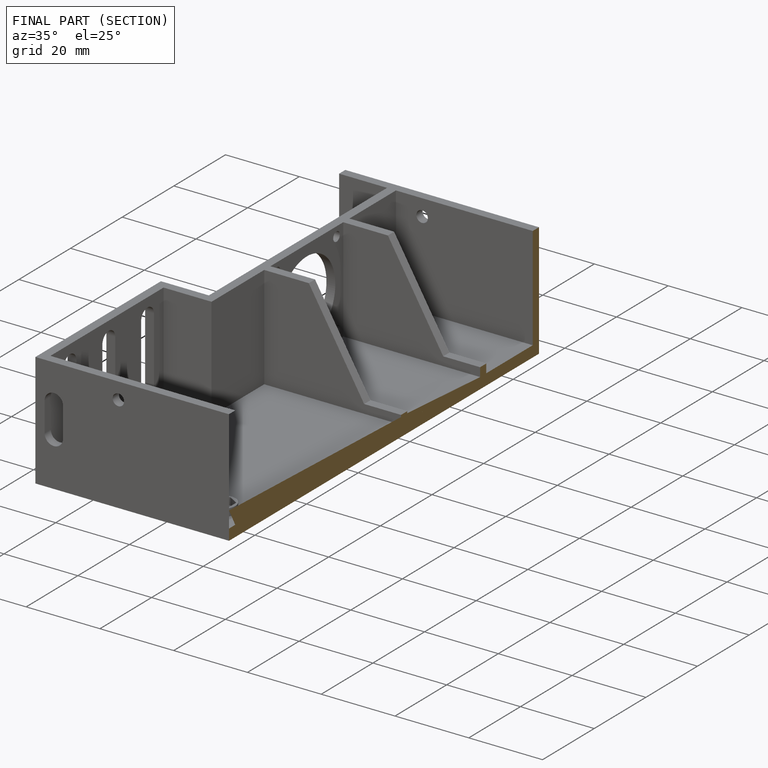
[diagram: finished part — half-section view (interior)]
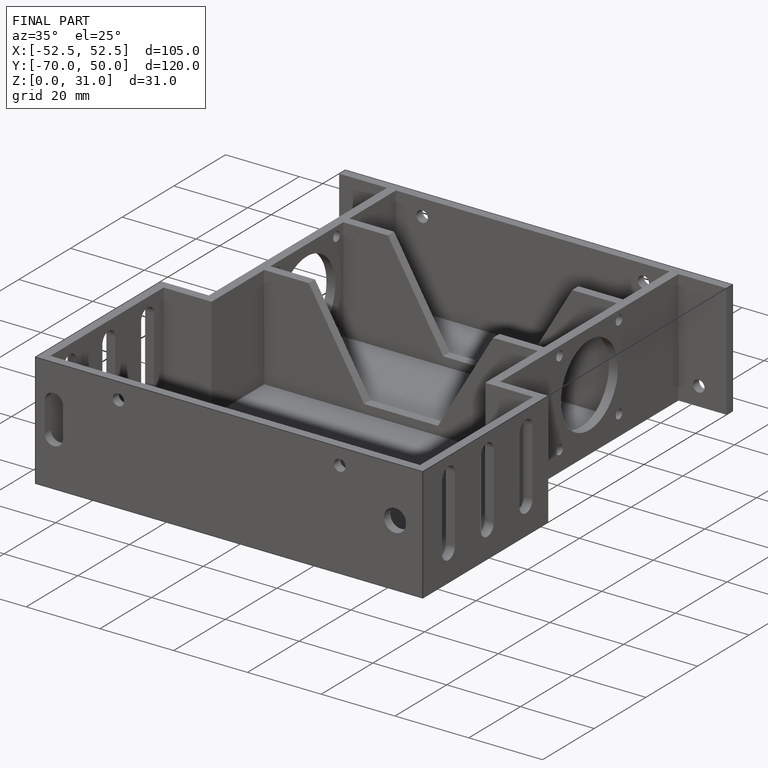
[diagram: finished part — iso view with bounding-box wireframe]
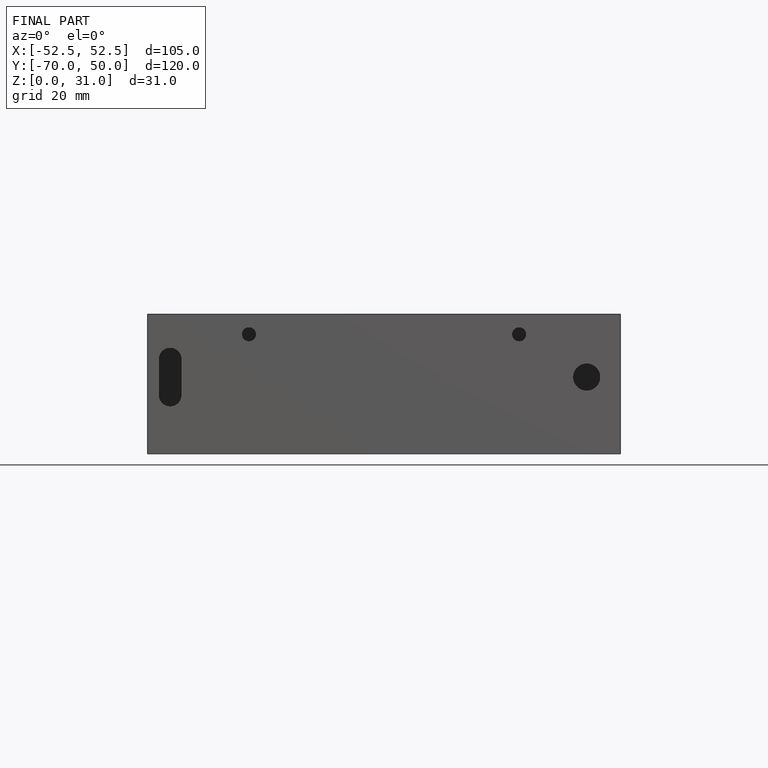
[diagram: finished part — front view with bounding-box wireframe]
